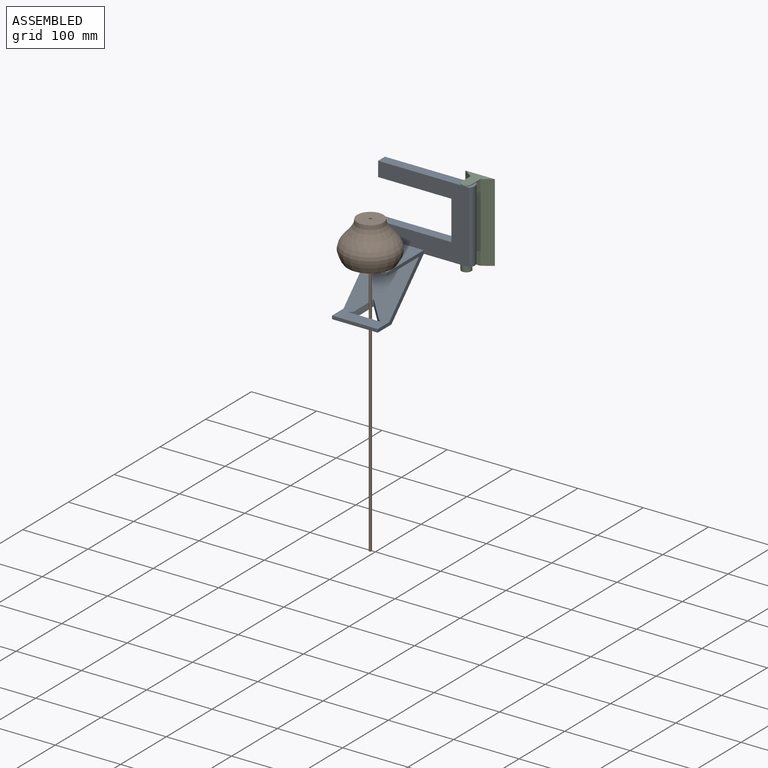
[diagram: assembled view]
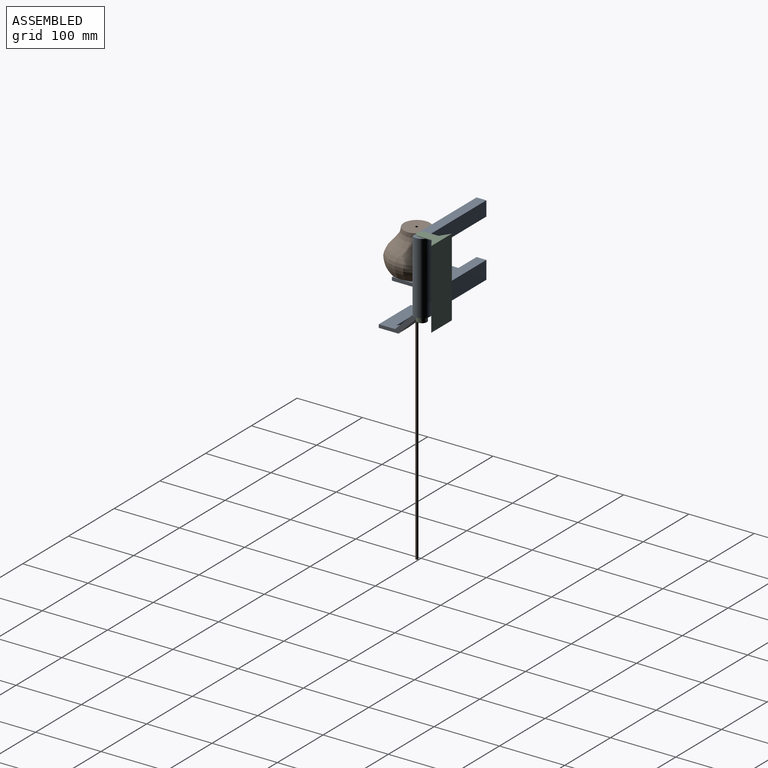
[diagram: assembled view, second angle]
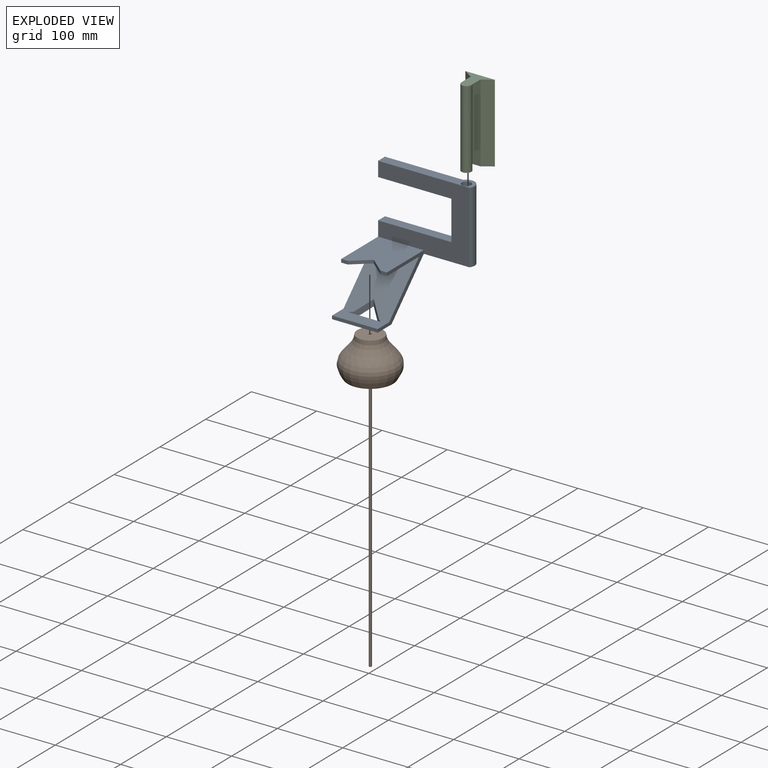
[diagram: exploded view]
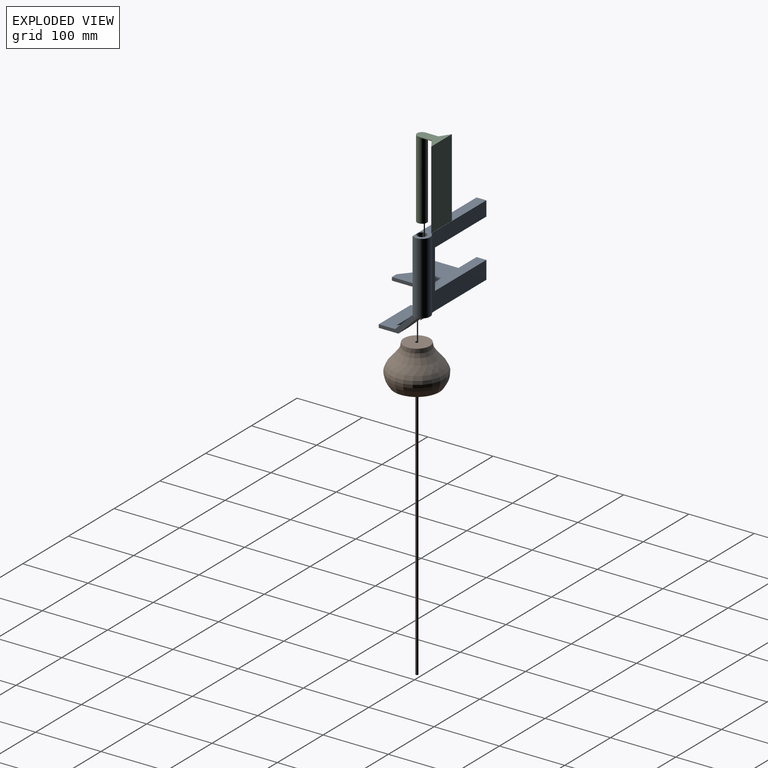
[diagram: exploded view, second angle]
ASSEMBLY  parts=3 mates=2
PART A: 26 faces, bbox 142.5x120.7x180.7 mm
  f0: plane 115.71x98.21mm, normal (-1,0,0), area 1635.7mm2, adj f1,f3,f4,f5,f6,f7,f8,f9
  f1: plane 120x110mm, normal (0,1,0), area 6461mm2, adj f0,f12,f19,f21,f22,f23,f24,f25
  f2: plane 10x5mm, normal (0,-1,0), area 50mm2, adj f3,f8,f11,f16
  f3: plane 70.71x70mm, normal (0,0,-1), area 4416.8mm2, adj f0,f2,f4,f9,f11,f16,f17
  f4: plane 70x65.71mm, normal (0,-0.71,0.71), area 6063.4mm2, adj f0,f3,f5,f11,f13,f14
  f5: plane 70x25mm, normal (0,0,1), area 1529.3mm2, adj f0,f4,f10,f11,f13,f14,f15
  f6: plane 70x30mm, normal (0,0,-1), area 1717.3mm2, adj f0,f7,f10,f11,f13,f14,f15
  f7: plane 70.71x70.71mm, normal (0,0.71,-0.71), area 6787.5mm2, adj f0,f6,f11,f13,f14,f21
  f8: plane 80.71x70mm, normal (0,0,1), area 5116.8mm2, adj f0,f2,f9,f11,f16,f17,f18
  f9: plane 10x5mm, normal (0,-1,0), area 50mm2, adj f0,f3,f8,f17
  f10: plane 70x5mm, normal (0,-1,0), area 350mm2, adj f0,f5,f6,f11
  f11: plane 100.71x75.71mm, normal (1,0,0), area 1223.2mm2, adj f2,f3,f4,f5,f6,f7,f8,f10
  f12: plane 22.5x15mm, normal (-1,0,0), area 337.5mm2, adj f1,f18,f22,f25
  f13: plane 25x21.32mm, normal (0.65,-0.76,0), area 270.8mm2, adj f4,f5,f6,f7,f14,f15
  f14: plane 25x21.32mm, normal (-0.65,-0.76,0), area 270.8mm2, adj f4,f5,f6,f7,f13,f15
  f15: plane 50x5mm, normal (0,1,0), area 250mm2, adj f5,f6,f13,f14
  f16: plane 25x21.32mm, normal (-0.65,-0.76,0), area 164.3mm2, adj f2,f3,f8,f17
  f17: plane 25x21.32mm, normal (0.65,-0.76,0), area 164.3mm2, adj f3,f8,f9,f16
  f18: plane 140x110mm, normal (0,-1,0), area 8311mm2, adj f0,f8,f11,f12,f19,f21,f22,f23
  f19: cylinder r=12.5mm len=110mm, axis (0,0,1), area 4319.7mm2, adj f1,f18,f21,f22
  f20: cylinder r=7mm len=110mm, axis (0,0,1), area 4838.1mm2, adj f21,f22
  f21: plane 142.5x20mm, normal (0,0,-1), area 2041.5mm2, adj f0,f1,f7,f18,f19,f20
  f22: plane 142.5x20mm, normal (0,0,1), area 2041.5mm2, adj f1,f12,f18,f19,f20
  f23: plane 60x15mm, normal (-1,0,0), area 900mm2, adj f1,f18,f24,f25
  f24: plane 112.32x15mm, normal (0,0,1), area 1684.7mm2, adj f0,f1,f18,f23
  f25: plane 112.32x15mm, normal (0,0,-1), area 1684.7mm2, adj f1,f12,f18,f23
PART B: 8 faces, bbox 84.5x84.5x460 mm
  f0: plane 40x40mm, normal (0,0,1), area 1241.6mm2, adj f1,f7
  f1: cylinder r=2.19mm len=57.85mm, axis (0,0,-1), area 796.2mm2, adj f0,f2
  f2: cone r=2.19mm half-angle=45.6deg, axis (0,0,1), area 21.1mm2, adj f1
  f3: plane 4x4mm, normal (0,0,-1), area 12.6mm2, adj f4
  f4: cylinder r=2mm len=397.37mm, axis (0,0,-1), area 4993.5mm2, adj f3,f5
  f5: cone r=4.69mm half-angle=45.6deg, axis (0,0,1), area 79mm2, adj f4,f6
  f6: plane 69.37x69.37mm, normal (0,0,-1), area 3710.8mm2, adj f5,f7
  f7: revolved ~84.46x84.46mm, area 14444.6mm2, adj f0,f6
PART C: 11 faces, bbox 37.5x45x120 mm
  f0: cylinder r=7.5mm len=120mm, axis (0,0,-1), area 5631.3mm2, adj f1,f2,f8,f9,f10
  f1: plane 45x37.5mm, normal (0,0,1), area 688.4mm2, adj f0,f4,f6,f7,f8,f9
  f2: plane 15x15mm, normal (0,0,-1), area 176.7mm2, adj f0
  f3: plane 45x10mm, normal (0,0,-1), area 300mm2, adj f4,f5,f6,f7
  f4: plane 120x15mm, normal (-0.83,-0.55,0), area 2163.3mm2, adj f1,f3,f5,f6,f9
  f5: plane 119x15mm, normal (-1,0,0), area 1785mm2, adj f3,f4,f7,f10
  f6: plane 120x45mm, normal (1,0,0), area 5400mm2, adj f1,f3,f4,f7
  f7: plane 120x15mm, normal (-0.83,0.55,0), area 2163.3mm2, adj f1,f3,f5,f6,f8
  f8: plane 20x1mm, normal (0,1,0), area 20mm2, adj f0,f1,f7,f10
  f9: plane 20x1mm, normal (0,-1,0), area 20mm2, adj f0,f1,f4,f10
  f10: plane 20x15mm, normal (0,0,-1), area 211.6mm2, adj f0,f5,f8,f9
PLACE A t=(-135.11,-110.25,-41.19)mm
PLACE B rot(axis=(0,0,-1),15deg) t=(-100.11,-96.43,34.52)mm
PLACE C rot(axis=(0,0,1),90deg) t=(-5.11,-22.04,20.52)mm fixed
MATE revolute C.f0 <-> A.f19  axis (0,0,-1) through (-5.11,-22.04,80.52)mm
MATE planar B.f1 <-> A.f8  axis (0,0,-1) through (-100.11,-96.43,34.52)mm
